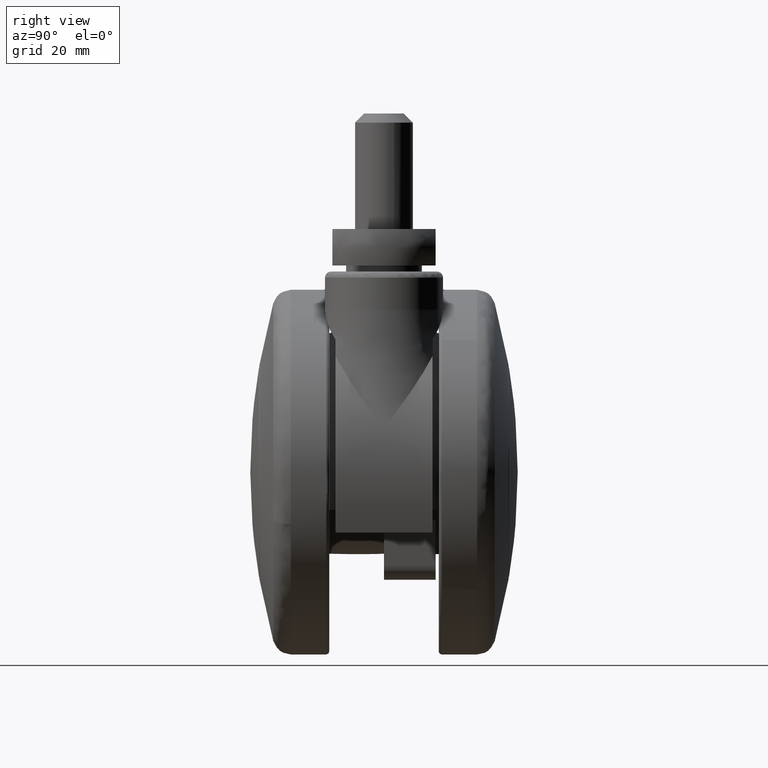
[diagram: clean part render]
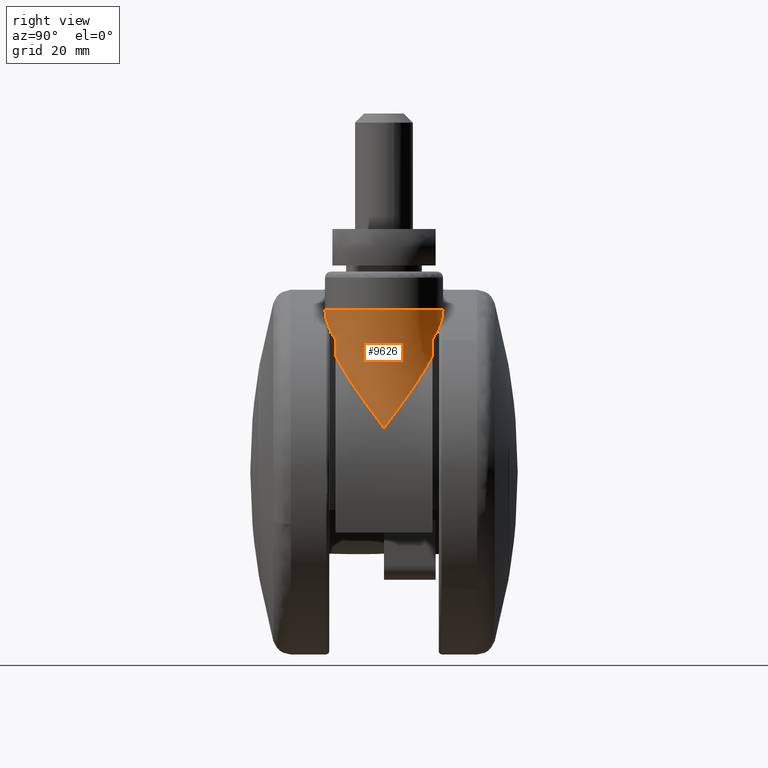
[diagram: same view with one face highlighted and labeled with its STEP entity id]
A machine part, right view. The second image highlights one B-rep face of the part: STEP entity #9626.
In plain terms, the highlighted face is a freeform B-spline surface patch.
Its self-contained STEP definition (entity closure, byte-faithful):
#8840=CARTESIAN_POINT('',(22.752926779395349,8.0,21.784267785984301));
#8841=VERTEX_POINT('',#8840);
#8888=CARTESIAN_POINT('',(17.0,9.700309914899229,26.518861212352249));
#8889=VERTEX_POINT('',#8888);
#8895=CARTESIAN_POINT('',(22.752926779395349,7.999999999999955,21.784267785984319));
#8896=CARTESIAN_POINT('',(22.343693254575221,8.261600083093555,22.211698283873119));
#8897=CARTESIAN_POINT('',(21.918141434823639,8.495838999203251,22.632086715946219));
#8898=CARTESIAN_POINT('',(21.032632771969169,8.908320015521003,23.457293785825570));
#8899=CARTESIAN_POINT('',(20.572687107980741,9.086568452273545,23.862122550279221));
#8900=CARTESIAN_POINT('',(19.615328530245780,9.381379153929892,24.655125919328569));
#8901=CARTESIAN_POINT('',(19.117944147389199,9.498009989822307,25.043303976210780));
#8902=CARTESIAN_POINT('',(18.469722102016320,9.598321883808957,25.517546304033889));
#8903=CARTESIAN_POINT('',(18.338704436295810,9.616089913315713,25.611871249010250));
#8904=CARTESIAN_POINT('',(18.075392711639111,9.646654054306785,25.798376065127009));
#8905=CARTESIAN_POINT('',(17.942924208105179,9.659480040610623,25.890685273928082));
#8906=CARTESIAN_POINT('',(17.543059346158969,9.690348803486756,26.164776344214339));
#8907=CARTESIAN_POINT('',(17.273205075146649,9.700797415671019,26.343722233332699));
#8908=CARTESIAN_POINT('',(17.0,9.700309914899261,26.518861212352260));
#8909=B_SPLINE_CURVE_WITH_KNOTS('',3,(#8895,#8896,#8897,#8898,#8899,#8900,#8901,#8902,#8903,#8904,#8905,#8906,#8907,#8908),.UNSPECIFIED.,.F.,.U.,(4,2,2,2,2,2,4),(0.0,0.249999999999999,0.499999999999998,0.749999999999998,0.812499999999998,0.874999999999999,1.0),.UNSPECIFIED.);
#8910=EDGE_CURVE('',#8841,#8889,#8909,.T.);
#8931=CARTESIAN_POINT('',(17.0,-9.700309914899229,26.518861212352249));
#8932=VERTEX_POINT('',#8931);
#8971=CARTESIAN_POINT('',(22.752926779387401,-8.0,21.784267785992650));
#8972=VERTEX_POINT('',#8971);
#8986=CARTESIAN_POINT('',(16.999999999999989,-9.700309914899217,26.518861212352249));
#8987=CARTESIAN_POINT('',(17.545658099694119,-9.701283574501160,26.169065358732439));
#8988=CARTESIAN_POINT('',(18.073674223615630,-9.658908562437574,25.806869503599369));
#8989=CARTESIAN_POINT('',(19.097768213473380,-9.501815198021111,25.058480855423799));
#8990=CARTESIAN_POINT('',(19.593825746916320,-9.386997073461490,24.672286348073690));
#8991=CARTESIAN_POINT('',(20.315442785681959,-9.166257251025035,24.075510683724850));
#8992=CARTESIAN_POINT('',(20.552228507662559,-9.084550787192114,23.873670717406949));
#8993=CARTESIAN_POINT('',(20.901900251712309,-8.950204073384512,23.566599848218591));
#8994=CARTESIAN_POINT('',(21.017460001259710,-8.903480271267330,23.463590475883059));
#8995=CARTESIAN_POINT('',(21.245808934399761,-8.806578483349938,23.257027016527321));
#8996=CARTESIAN_POINT('',(21.358716645612621,-8.756355815617503,23.153369410201499));
#8997=CARTESIAN_POINT('',(21.917083356349110,-8.496605181596674,22.633252657009660));
#8998=CARTESIAN_POINT('',(22.344092934920120,-8.261344589823375,22.211280831346610));
#8999=CARTESIAN_POINT('',(22.752926779387401,-8.0,21.784267785992650));
#9000=B_SPLINE_CURVE_WITH_KNOTS('',3,(#8986,#8987,#8988,#8989,#8990,#8991,#8992,#8993,#8994,#8995,#8996,#8997,#8998,#8999),.UNSPECIFIED.,.F.,.U.,(4,2,2,2,2,2,4),(0.0,0.250000000000001,0.500000000000001,0.625000000000001,0.687500000000001,0.750000000000001,1.0),.UNSPECIFIED.);
#9001=EDGE_CURVE('',#8932,#8972,#9000,.T.);
#9283=CARTESIAN_POINT('',(17.0,9.700000000000001,26.741540999999899));
#9284=VERTEX_POINT('',#9283);
#9316=CARTESIAN_POINT('',(17.0,-9.700000000000001,26.741540999999899));
#9317=VERTEX_POINT('',#9316);
#9351=CARTESIAN_POINT('',(17.0,9.700000000000001,26.741540999999899));
#9352=CARTESIAN_POINT('',(26.699999999999999,9.700000000000003,26.741540999999899));
#9353=CARTESIAN_POINT('',(26.699999999999999,0.0,26.741540999999899));
#9354=CARTESIAN_POINT('',(26.699999999999999,-9.700000000000003,26.741540999999899));
#9355=CARTESIAN_POINT('',(17.0,-9.700000000000001,26.741540999999899));
#9363=(BOUNDED_CURVE()B_SPLINE_CURVE(2,(#9351,#9352,#9353,#9354,#9355),.UNSPECIFIED.,.F.,.U.)B_SPLINE_CURVE_WITH_KNOTS((3,2,3),(0.0,0.500000000000000,1.0),.UNSPECIFIED.)CURVE()GEOMETRIC_REPRESENTATION_ITEM()RATIONAL_B_SPLINE_CURVE((1.0,0.707106781186548,1.0,0.707106781186548,1.0))REPRESENTATION_ITEM(''));
#9364=EDGE_CURVE('',#9284,#9317,#9363,.T.);
#9486=CARTESIAN_POINT('',(17.0,-9.700000000000001,26.741540999999899));
#9487=CARTESIAN_POINT('',(17.000000000000004,-9.700000000000001,26.630200890514939));
#9488=CARTESIAN_POINT('',(17.0,-9.700309914899217,26.518861212352260));
#9496=(BOUNDED_CURVE()B_SPLINE_CURVE(2,(#9486,#9487,#9488),.UNSPECIFIED.,.F.,.U.)CURVE()GEOMETRIC_REPRESENTATION_ITEM()QUASI_UNIFORM_CURVE()RATIONAL_B_SPLINE_CURVE((1.0,0.999999031515471,1.0))REPRESENTATION_ITEM(''));
#9497=EDGE_CURVE('',#9317,#8932,#9496,.T.);
#9502=CARTESIAN_POINT('',(15.256616229086763,12.219767478486977,6.346134425365437));
#9503=CARTESIAN_POINT('',(29.433236589778655,14.242333775819548,6.346134425365440));
#9504=CARTESIAN_POINT('',(29.343260884602124,-0.077556016031765,6.346134425365440));
#9505=CARTESIAN_POINT('',(29.254356558915084,-14.226932710101117,6.346134425365441));
#9506=CARTESIAN_POINT('',(15.247962228853780,-12.218529692620491,6.346134425365437));
#9507=CARTESIAN_POINT('',(15.647919319835971,9.477036438800917,16.854209803496950));
#9508=CARTESIAN_POINT('',(26.642592334183664,11.045637030707173,16.854209803496950));
#9509=CARTESIAN_POINT('',(26.572811707173685,-0.060148541392072,16.854209803496957));
#9510=CARTESIAN_POINT('',(26.503861988156007,-11.033692739519397,16.854209803496964));
#9511=CARTESIAN_POINT('',(15.641207712950346,-9.476076474400550,16.854209803496957));
#9512=CARTESIAN_POINT('',(15.629135937257475,9.608693375958561,27.720563996731144));
#9513=CARTESIAN_POINT('',(26.776549207851545,11.199085289538807,27.720563996731144));
#9514=CARTESIAN_POINT('',(26.705799174035509,-0.060984137285927,27.720563996731148));
#9515=CARTESIAN_POINT('',(26.635891591356312,-11.186975065804029,27.720563996731148));
#9516=CARTESIAN_POINT('',(15.622331091350164,-9.607720075535527,27.720563996731148));
#9524=(BOUNDED_SURFACE()B_SPLINE_SURFACE(2,2,((#9502,#9507,#9512),(#9503,#9508,#9513),(#9504,#9509,#9514),(#9505,#9510,#9515),(#9506,#9511,#9516)),.UNSPECIFIED.,.F.,.F.,.U.)B_SPLINE_SURFACE_WITH_KNOTS((3,2,3),(3,3),(0.380771070468426,39.518623532840977,78.351965755474566),(23.627970406150819,45.263467124366763),.UNSPECIFIED.)GEOMETRIC_REPRESENTATION_ITEM()RATIONAL_B_SPLINE_SURFACE(((0.952331183654650,0.943047294260583,0.951085752667372),(0.623875522787091,0.617793614047115,0.623059636547494),(0.958785044941330,0.949438239478380,0.957531173782217),(0.626481270738645,0.620373959621653,0.625661976777764),(0.947260272800254,0.938025817653755,0.946021473402512)))REPRESENTATION_ITEM('')SURFACE());
#9525=CARTESIAN_POINT('',(23.103097454689198,8.0,19.137577903150049));
#9526=VERTEX_POINT('',#9525);
#9527=CARTESIAN_POINT('',(22.752926779395320,8.0,21.784267785984291));
#9528=CARTESIAN_POINT('',(22.800031505637179,8.000000000000002,21.341308287025551));
#9529=CARTESIAN_POINT('',(22.852992032389690,8.0,20.899308287175451));
#9530=CARTESIAN_POINT('',(22.969944502110689,8.0,20.017115834369498));
#9531=CARTESIAN_POINT('',(23.033935194798151,8.0,19.576923176549510));
#9532=CARTESIAN_POINT('',(23.103097454689209,8.0,19.137577903150000));
#9533=B_SPLINE_CURVE_WITH_KNOTS('',3,(#9527,#9528,#9529,#9530,#9531,#9532),.UNSPECIFIED.,.F.,.U.,(4,2,4),(0.0,0.500000000000000,1.0),.UNSPECIFIED.);
#9534=EDGE_CURVE('',#8841,#9526,#9533,.T.);
#9535=ORIENTED_EDGE('',*,*,#9534,.F.);
#9536=ORIENTED_EDGE('',*,*,#8910,.T.);
#9537=CARTESIAN_POINT('',(17.0,9.700309914899217,26.518861212352238));
#9538=CARTESIAN_POINT('',(17.000000000000004,9.700000000000001,26.630200890514903));
#9539=CARTESIAN_POINT('',(17.0,9.700000000000001,26.741540999999899));
#9547=(BOUNDED_CURVE()B_SPLINE_CURVE(2,(#9537,#9538,#9539),.UNSPECIFIED.,.F.,.U.)CURVE()GEOMETRIC_REPRESENTATION_ITEM()QUASI_UNIFORM_CURVE()RATIONAL_B_SPLINE_CURVE((1.0,0.999999031515471,1.0))REPRESENTATION_ITEM(''));
#9548=EDGE_CURVE('',#8889,#9284,#9547,.T.);
#9549=ORIENTED_EDGE('',*,*,#9548,.T.);
#9550=ORIENTED_EDGE('',*,*,#9364,.T.);
#9551=ORIENTED_EDGE('',*,*,#9497,.T.);
#9552=ORIENTED_EDGE('',*,*,#9001,.T.);
#9553=CARTESIAN_POINT('',(23.103097454686399,-8.0,19.137577903167202));
#9554=VERTEX_POINT('',#9553);
#9555=CARTESIAN_POINT('',(23.103097454686360,-8.0,19.137577903167202));
#9556=CARTESIAN_POINT('',(23.033827948576182,-8.000000000000002,19.577604445796439));
#9557=CARTESIAN_POINT('',(22.969797997292758,-8.0,20.018153822358240));
#9558=CARTESIAN_POINT('',(22.852861194167620,-8.0,20.900362504476810));
#9559=CARTESIAN_POINT('',(22.799955615425660,-8.0,21.342021937071070));
#9560=CARTESIAN_POINT('',(22.752926779387401,-8.0,21.784267785992650));
#9561=B_SPLINE_CURVE_WITH_KNOTS('',3,(#9555,#9556,#9557,#9558,#9559,#9560),.UNSPECIFIED.,.F.,.U.,(4,2,4),(0.0,0.500000000000000,1.0),.UNSPECIFIED.);
#9562=EDGE_CURVE('',#9554,#8972,#9561,.T.);
#9563=ORIENTED_EDGE('',*,*,#9562,.F.);
#9564=CARTESIAN_POINT('',(29.099999981897049,0.0,7.293147540917500));
#9565=VERTEX_POINT('',#9564);
#9566=CARTESIAN_POINT('',(23.103097454686399,-8.0,19.137577903167202));
#9567=CARTESIAN_POINT('',(23.491631637550590,-7.759921766544590,18.668535104915851));
#9568=CARTESIAN_POINT('',(23.861664040296329,-7.501385195813394,18.192805815168370));
#9569=CARTESIAN_POINT('',(24.302695428004188,-7.157899281450686,17.589807263616891));
#9570=CARTESIAN_POINT('',(24.389823918570830,-7.088182645651417,17.468790537750099));
#9571=CARTESIAN_POINT('',(24.561957064227968,-6.946765772501954,17.225922872394939));
#9572=CARTESIAN_POINT('',(24.647026837928379,-6.875006669551032,17.103974512818731));
#9573=CARTESIAN_POINT('',(24.898200931065560,-6.657617515530697,16.738192696200670));
#9574=CARTESIAN_POINT('',(25.060512346987970,-6.509693952427899,16.494097010694659));
#9575=CARTESIAN_POINT('',(25.532916366758212,-6.057669066768609,15.760972145622899));
#9576=CARTESIAN_POINT('',(25.828513924086440,-5.745343256792403,15.271100378987400));
#9577=CARTESIAN_POINT('',(26.384710847762982,-5.101786528413657,14.288655352823589));
#9578=CARTESIAN_POINT('',(26.645298164523592,-4.770544504798438,13.796084380968949));
#9579=CARTESIAN_POINT('',(27.378549178466240,-3.751748403265429,12.313832830399440));
#9580=CARTESIAN_POINT('',(27.802943836338869,-3.039305799145861,11.319596698239630));
#9581=CARTESIAN_POINT('',(28.353057974389920,-1.929372298915899,9.817756482274151));
#9582=CARTESIAN_POINT('',(28.521947862301928,-1.552463419039976,9.315401158644908));
#9583=CARTESIAN_POINT('',(28.754323615094119,-0.977402316337553,8.559113598383249));
#9584=CARTESIAN_POINT('',(28.865267230480612,-0.687444115511029,8.180281372320016));
#9585=CARTESIAN_POINT('',(28.985647126623931,-0.345034520211045,7.737075370849777));
#9586=CARTESIAN_POINT('',(29.043586020016139,-0.172812742084711,7.515159311413918));
#9587=CARTESIAN_POINT('',(29.071994461517999,-0.086451033188515,7.404121419792639));
#9588=CARTESIAN_POINT('',(29.084049949369991,-0.049388514740103,7.356514564828036));
#9589=CARTESIAN_POINT('',(29.092061381019910,-0.024675297097744,7.324768433400821));
#9590=CARTESIAN_POINT('',(29.096117419647381,-0.012405675040626,7.308639145983944));
#9591=CARTESIAN_POINT('',(29.099999981897049,0.0,7.293147540917500));
#9592=B_SPLINE_CURVE_WITH_KNOTS('',3,(#9566,#9567,#9568,#9569,#9570,#9571,#9572,#9573,#9574,#9575,#9576,#9577,#9578,#9579,#9580,#9581,#9582,#9583,#9584,#9585,#9586,#9587,#9588,#9589,#9590,#9591),.UNSPECIFIED.,.F.,.U.,(4,2,2,2,2,2,2,2,2,1,1,1,1,2,4),(0.0,0.124999999999999,0.156249999999999,0.187499999999999,0.249999999999999,0.374999999999999,0.499999999999999,0.749999999999999,0.874999999999999,0.937499999999999,0.968750000000000,0.984375000000000,0.992187500000000,0.996093750000000,1.0),.UNSPECIFIED.);
#9593=EDGE_CURVE('',#9554,#9565,#9592,.T.);
#9594=ORIENTED_EDGE('',*,*,#9593,.T.);
#9595=CARTESIAN_POINT('',(29.099999981897049,0.0,7.293147540917500));
#9596=CARTESIAN_POINT('',(29.096117419647399,0.012405675040615,7.308639145983928));
#9597=CARTESIAN_POINT('',(29.092061381019938,0.024675297097942,7.324768433400650));
#9598=CARTESIAN_POINT('',(29.084049949370009,0.049388514740169,7.356514564827907));
#9599=CARTESIAN_POINT('',(29.071994461518049,0.086451033188551,7.404121419792466));
#9600=CARTESIAN_POINT('',(29.043586020016161,0.172812742084423,7.515159311413808));
#9601=CARTESIAN_POINT('',(28.985647126624020,0.345034520210642,7.737075370849449));
#9602=CARTESIAN_POINT('',(28.865267230480839,0.687444115510434,8.180281372319229));
#9603=CARTESIAN_POINT('',(28.754323615094449,0.977402316336697,8.559113598382130));
#9604=CARTESIAN_POINT('',(28.521947862302500,1.552463419038628,9.315401158643123));
#9605=CARTESIAN_POINT('',(28.353057974390719,1.929372298914327,9.817756482271872));
#9606=CARTESIAN_POINT('',(27.802943836340280,3.039305799143338,11.319596698236060));
#9607=CARTESIAN_POINT('',(27.378549178468159,3.751748403262273,12.313832830395061));
#9608=CARTESIAN_POINT('',(26.645298164526508,4.770544504794565,13.796084380963279));
#9609=CARTESIAN_POINT('',(26.384710847766272,5.101786528409592,14.288655352817480));
#9610=CARTESIAN_POINT('',(25.828513924090519,5.745343256787934,15.271100378980440));
#9611=CARTESIAN_POINT('',(25.532916366762731,6.057669066763936,15.760972145615520));
#9612=CARTESIAN_POINT('',(25.060512346993221,6.509693952423003,16.494097010686659));
#9613=CARTESIAN_POINT('',(24.898200931071081,6.657617515525739,16.738192696192449));
#9614=CARTESIAN_POINT('',(24.647026837934309,6.875006669545988,17.103974512810201));
#9615=CARTESIAN_POINT('',(24.561957064234019,6.946765772496899,17.225922872386310));
#9616=CARTESIAN_POINT('',(24.389823918577129,7.088182645646329,17.468790537741310));
#9617=CARTESIAN_POINT('',(24.302695428010619,7.157899281445573,17.589807263608002));
#9618=CARTESIAN_POINT('',(23.861664040303420,7.501385195808230,18.192805815159041));
#9619=CARTESIAN_POINT('',(23.491631637558239,7.759921766539451,18.668535104906180));
#9620=CARTESIAN_POINT('',(23.103097454689198,8.0,19.137577903150049));
#9621=B_SPLINE_CURVE_WITH_KNOTS('',3,(#9595,#9596,#9597,#9598,#9599,#9600,#9601,#9602,#9603,#9604,#9605,#9606,#9607,#9608,#9609,#9610,#9611,#9612,#9613,#9614,#9615,#9616,#9617,#9618,#9619,#9620),.UNSPECIFIED.,.F.,.U.,(4,2,1,1,1,1,2,2,2,2,2,2,2,2,4),(0.0,0.003906250000000,0.007812500000000,0.015625000000000,0.031250000000000,0.062500000000000,0.125000000000000,0.250000000000000,0.499999999999999,0.624999999999999,0.749999999999998,0.812499999999999,0.843749999999999,0.874999999999999,1.0),.UNSPECIFIED.);
#9622=EDGE_CURVE('',#9565,#9526,#9621,.T.);
#9623=ORIENTED_EDGE('',*,*,#9622,.T.);
#9624=EDGE_LOOP('',(#9535,#9536,#9549,#9550,#9551,#9552,#9563,#9594,#9623));
#9625=FACE_OUTER_BOUND('',#9624,.T.);
#9626=ADVANCED_FACE('',(#9625),#9524,.F.);